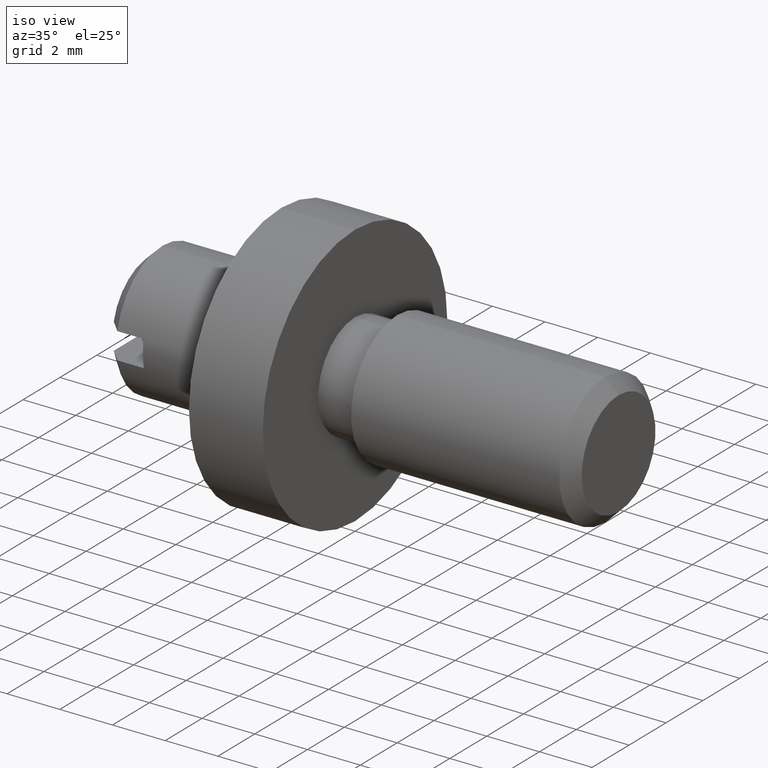
[diagram: clean part render]
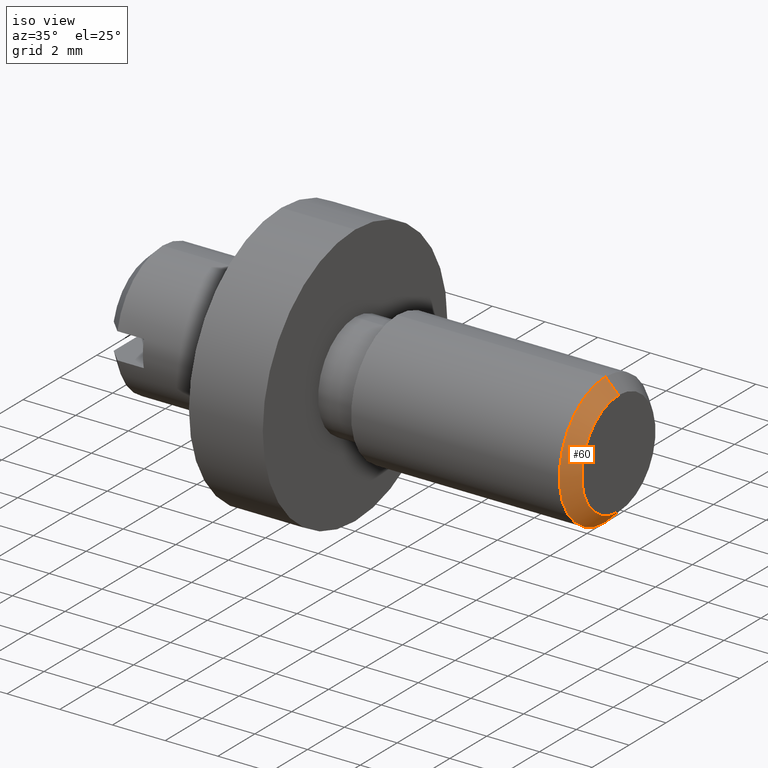
[diagram: same view with one face highlighted and labeled with its STEP entity id]
A machine part, iso view. The second image highlights one B-rep face of the part: STEP entity #60.
In plain terms, the highlighted face is a freeform B-spline surface patch.
Its self-contained STEP definition (entity closure, byte-faithful):
#60=ADVANCED_FACE('',(#265),#264,.T.);
#264=( BOUNDED_SURFACE() B_SPLINE_SURFACE( 2,1,((#395,#396),(#397,#398),(#399,#400),(#401,#402),(#403,#404)), .UNSPECIFIED.,.F.,.F.,.F.) B_SPLINE_SURFACE_WITH_KNOTS((3,2,3),(2,2),(0.00000000000E+00,5.00000000000E-01,1.00000000000E+00),(0.00000000000E+00,1.00000000000E+00), .UNSPECIFIED. ) GEOMETRIC_REPRESENTATION_ITEM() RATIONAL_B_SPLINE_SURFACE(((1.00000000000E+00,1.00000000000E+00),(7.07106781187E-01,7.07106781187E-01),(1.00000000000E+00,1.00000000000E+00),(7.07106781187E-01,7.07106781187E-01),(1.00000000000E+00,1.00000000000E+00))) REPRESENTATION_ITEM('') SURFACE() );
#265=FACE_OUTER_BOUND('',#405,.T.);
#395=CARTESIAN_POINT('',(2.00000000000E+00,-1.37772764904E-16,0.00000000000E+00));
#396=CARTESIAN_POINT('',(-1.53553390593E+00,-1.19315670844E-15,-3.53553390593E+00));
#397=CARTESIAN_POINT('',(2.00000000000E+00,-1.37772764904E-16,0.00000000000E+00));
#398=CARTESIAN_POINT('',(-1.53553390593E+00,-3.53553390593E+00,-3.53553390593E+00));
#399=CARTESIAN_POINT('',(2.00000000000E+00,-1.37772764904E-16,0.00000000000E+00));
#400=CARTESIAN_POINT('',(-1.53553390593E+00,-3.53553390593E+00,8.38894929478E-16));
#401=CARTESIAN_POINT('',(2.00000000000E+00,-1.37772764904E-16,0.00000000000E+00));
#402=CARTESIAN_POINT('',(-1.53553390593E+00,-3.53553390593E+00,3.53553390593E+00));
#403=CARTESIAN_POINT('',(2.00000000000E+00,-1.37772764904E-16,0.00000000000E+00));
#404=CARTESIAN_POINT('',(-1.53553390593E+00,4.84633150515E-16,3.53553390593E+00));
#405=EDGE_LOOP('',(#494,#495,#496,#497));
#494=ORIENTED_EDGE('',*,*,#514,.T.);
#495=ORIENTED_EDGE('',*,*,#542,.T.);
#496=ORIENTED_EDGE('',*,*,#541,.F.);
#497=ORIENTED_EDGE('',*,*,#543,.F.);
#514=EDGE_CURVE('',#653,#654,#655,.T.);
#541=EDGE_CURVE('',#819,#812,#832,.T.);
#542=EDGE_CURVE('',#654,#812,#838,.T.);
#543=EDGE_CURVE('',#653,#819,#844,.T.);
#653=VERTEX_POINT('',#919);
#654=VERTEX_POINT('',#920);
#655=CIRCLE('',#924,2.00000000000E+00);
#812=VERTEX_POINT('',#1018);
#819=VERTEX_POINT('',#1021);
#832=CIRCLE('',#1031,2.50000000000E+00);
#838=(BOUNDED_CURVE() B_SPLINE_CURVE(1,(#1032,#1033),.UNSPECIFIED.,.F.,.F.) B_SPLINE_CURVE_WITH_KNOTS((2,2),(5.65685428679E-01,7.07106782155E-01),.UNSPECIFIED.) CURVE() GEOMETRIC_REPRESENTATION_ITEM() RATIONAL_B_SPLINE_CURVE((1.00000000000E+00,1.00000000000E+00)) REPRESENTATION_ITEM('') );
#844=(BOUNDED_CURVE() B_SPLINE_CURVE(1,(#1034,#1035),.UNSPECIFIED.,.F.,.F.) B_SPLINE_CURVE_WITH_KNOTS((2,2),(5.65685424949E-01,7.07106780467E-01),.UNSPECIFIED.) CURVE() GEOMETRIC_REPRESENTATION_ITEM() RATIONAL_B_SPLINE_CURVE((7.50000000000E-01,7.50000000000E-01)) REPRESENTATION_ITEM('') );
#919=CARTESIAN_POINT('',(0.00000000000E+00,7.40148683083E-17,-2.00000000000E+00));
#920=CARTESIAN_POINT('',(0.00000000000E+00,-4.66965875689E-16,2.00000000000E+00));
#921=CARTESIAN_POINT('',(0.00000000000E+00,0.00000000000E+00,0.00000000000E+00));
#922=DIRECTION('',(-1.00000000000E+00,0.00000000000E+00,0.00000000000E+00));
#923=DIRECTION('',(-0.00000000000E+00,-1.11022302463E-16,1.00000000000E+00));
#924=AXIS2_PLACEMENT_3D('',#921,#922,#923);
#1018=CARTESIAN_POINT('',(-5.00000000000E-01,1.48029736617E-16,2.50000000000E+00));
#1021=CARTESIAN_POINT('',(-5.00000000000E-01,3.06151588456E-16,-2.50000000000E+00));
#1028=CARTESIAN_POINT('',(-5.00000000000E-01,0.00000000000E+00,0.00000000000E+00));
#1029=DIRECTION('',(-1.00000000000E+00,0.00000000000E+00,0.00000000000E+00));
#1030=DIRECTION('',(-0.00000000000E+00,-0.00000000000E+00,-1.00000000000E+00));
#1031=AXIS2_PLACEMENT_3D('',#1028,#1029,#1030);
#1032=CARTESIAN_POINT('',(-1.31883400867E-08,7.04171915061E-16,2.00000001319E+00));
#1033=CARTESIAN_POINT('',(-5.00000003425E-01,9.14658079555E-16,2.50000000343E+00));
#1034=CARTESIAN_POINT('',(0.00000000000E+00,-9.80957628937E-16,-2.00000000000E+00));
#1035=CARTESIAN_POINT('',(-4.99999997456E-01,-1.19175384387E-15,-2.49999999746E+00));